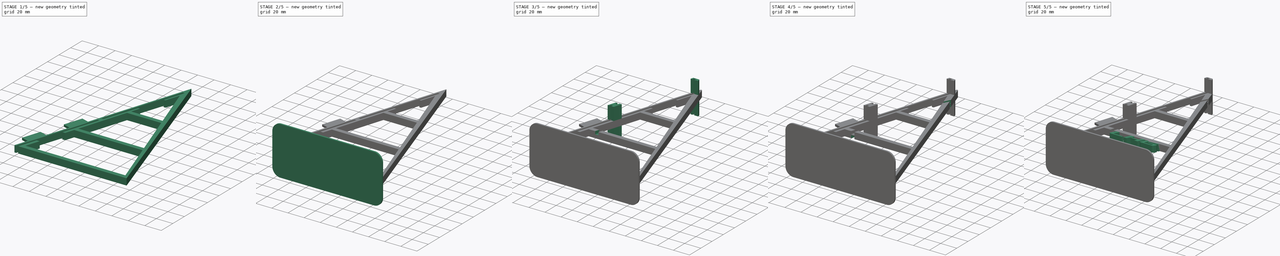
[diagram: build sequence overview — one tinted view per stage of 5, left to right]
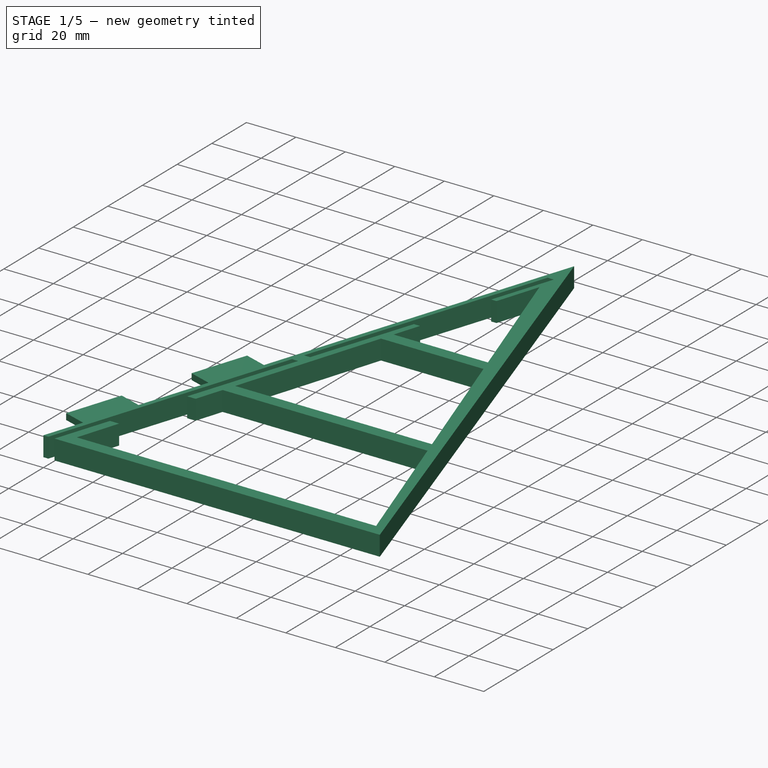
[diagram: stage 1 of 5 — iso view after this stage's code; geometry added in this stage tinted green]
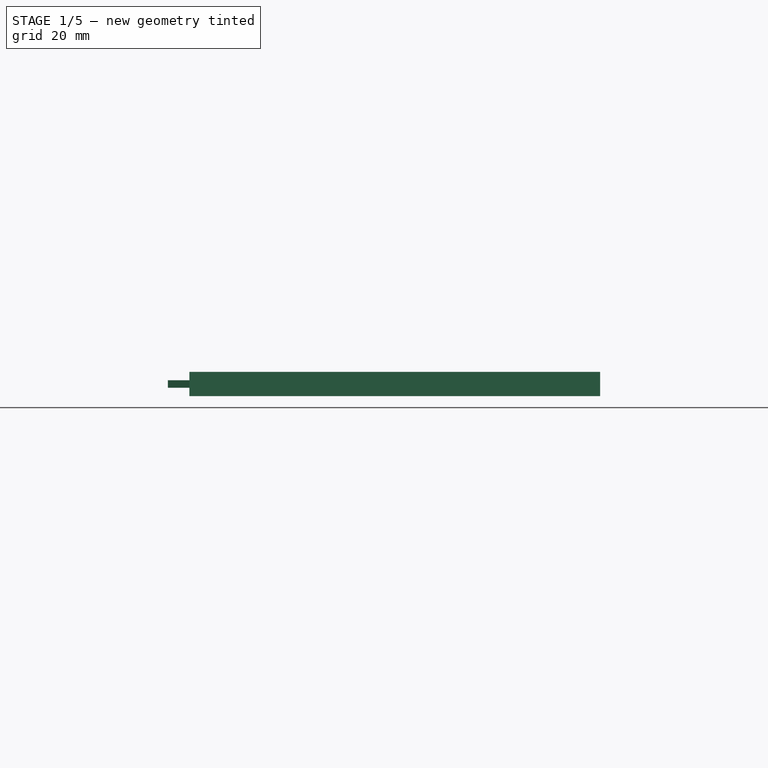
[diagram: stage 1 of 5 — front view after this stage's code; geometry added in this stage tinted green]
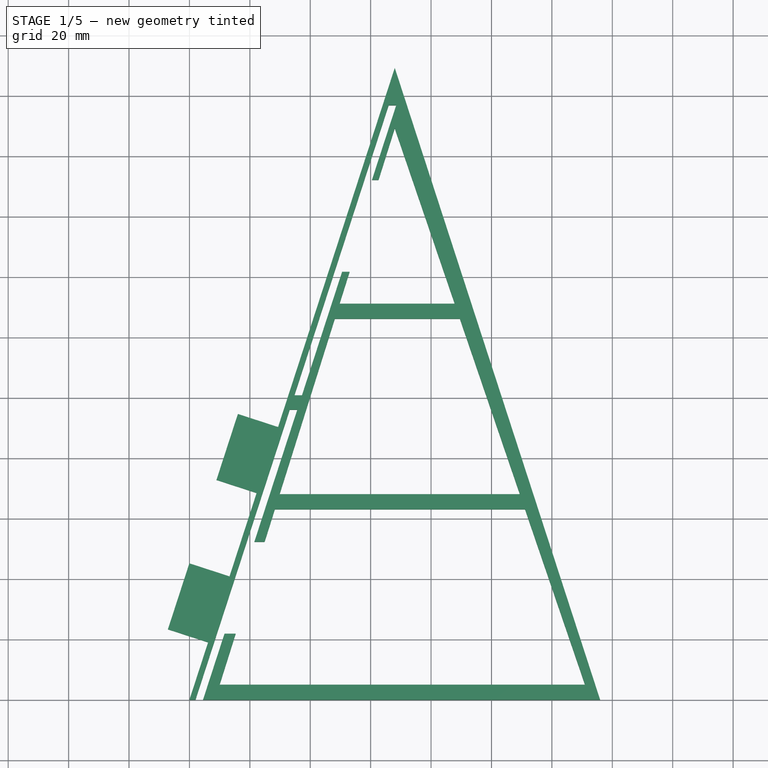
[diagram: stage 1 of 5 — top view after this stage's code; geometry added in this stage tinted green]
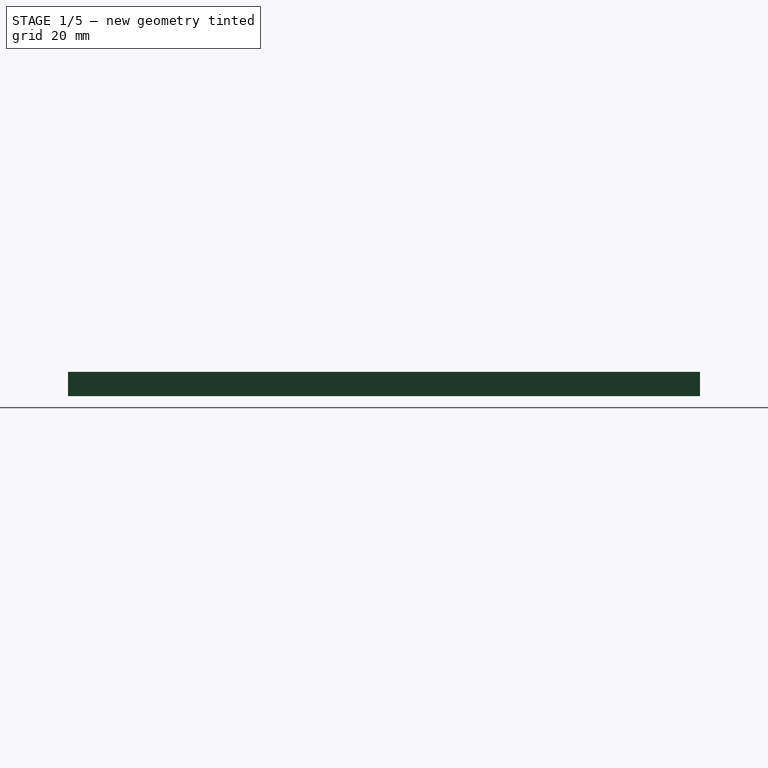
[diagram: stage 1 of 5 — right view after this stage's code; geometry added in this stage tinted green]
FCSTD DOCUMENT  (FreeCAD 0.20R29177 (Git))
Label: Halter von UI_Halterung_left_V2.2
License: All rights reserved
LicenseURL: http://en.wikipedia.org/wiki/All_rights_reserved
objects: Sketcher::SketchObject×10, PartDesign::Pocket×6, PartDesign::Pad×4, PartDesign::Fillet×4, Part::Part2DObjectPython×1, Part::Extrusion×1, PartDesign::Body×1
note: 41 computed .brp shape members not serialized (recipe doc carries the construction recipe); baked Part::Feature solids carry a one-line shape summary decoded from their .brp

FEATURE [Sketcher::SketchObject] Sketch  label="Grund Dreieck"
  FullyConstrained = true
  MapMode = 5
  Support = -> [XY_Plane]
  sketch-geometry (14):
    g0: LineSegment StartX=0 StartY=0 StartZ=0 EndX=67.9837 EndY=209.232 EndZ=0
    g1: LineSegment StartX=135.967 StartY=0 StartZ=0 EndX=0 EndY=0 EndZ=0
    g2: LineSegment StartX=67.9837 StartY=209.232 StartZ=0 EndX=135.967 EndY=0 EndZ=0
    g3: LineSegment StartX=67.9837 StartY=189.232 StartZ=0 EndX=49.7049 EndY=131.155 EndZ=0
    g4: LineSegment StartX=49.7049 StartY=131.155 StartZ=0 EndX=87.8387 EndY=131.155 EndZ=0
    g5: LineSegment StartX=87.8387 StartY=131.155 StartZ=0 EndX=67.9837 EndY=189.232 EndZ=0
    g6: LineSegment StartX=48.1313 StartY=126.155 StartZ=0 EndX=29.8525 EndY=68.0775 EndZ=0
    g7: LineSegment StartX=29.8525 StartY=68.0775 StartZ=0 EndX=109.403 EndY=68.0775 EndZ=0
    g8: LineSegment StartX=109.403 StartY=68.0775 StartZ=0 EndX=89.5481 EndY=126.155 EndZ=0
    g9: LineSegment StartX=89.5481 StartY=126.155 StartZ=0 EndX=48.1313 EndY=126.155 EndZ=0
    g10: LineSegment StartX=28.2788 StartY=63.0775 StartZ=0 EndX=10 EndY=5 EndZ=0
    g11: LineSegment StartX=10 StartY=5 StartZ=0 EndX=130.967 EndY=5 EndZ=0
    g12: LineSegment StartX=130.967 StartY=5 StartZ=0 EndX=111.112 EndY=63.0775 EndZ=0
    g13: LineSegment StartX=111.112 StartY=63.0775 StartZ=0 EndX=28.2788 EndY=63.0775 EndZ=0
  constraints (37):
    c: Coincident(g-1,g0)
    c: PointOnObject(g1,g-1)
    c: Coincident(g1,g0)
    c: Distance(g0) = 220
    c: Coincident(g2,g0)
    c: Coincident(g1,g2)
    c: Equal(g2,g0)
    c: Angle(g1,g0) = 1.25664
    c: Coincident(g3,g4)
    c: Horizontal(g4)
    c: Coincident(g4,g5)
    c: Coincident(g5,g3)
    c: Coincident(g6,g7)
    c: Horizontal(g7)
    c: Coincident(g7,g8)
    c: Coincident(g8,g9)
    c: Coincident(g9,g6)
    c: Horizontal(g9)
    c: Coincident(g10,g11)
    c: Horizontal(g11)
    c: Coincident(g11,g12)
    c: Coincident(g12,g13)
    c: Coincident(g13,g10)
    c: Horizontal(g13)
    c: DistanceY(g8,g4) = 5
    c: DistanceY(g12,g7) = 5
    c: DistanceY(g1,g11) = 5
    c: DistanceX(g0,g10) = 10
    c: DistanceX(g11,g1) = 5
    c: Tangent(g12,g8)
    c: Tangent(g8,g5)
    c: Tangent(g3,g6)
    c: Tangent(g6,g10)
    c: DistanceY(g3,g0) = 20
    c: Vertical(g3,g0)
    c: Equal(g3,g6)
    c: Equal(g6,g10)
FEATURE [PartDesign::Pad] Pad
  Direction = (0,0,1)
  Length = 8
  Length2 = 100
  Profile = -> Sketch
  Type = 0
FEATURE [Sketcher::SketchObject] Sketch003  label="HDT Halter"
  FullyConstrained = true
  MapMode = 5
  Placement = pos=(0,0,0) rot=(-0.456966,0.62896,0.62896;3.99886rad)
  sketch-geometry (8):
    g0: LineSegment StartX=-20 StartY=2.75 StartZ=0 EndX=-43 EndY=2.75 EndZ=0
    g1: LineSegment StartX=-43 StartY=2.75 StartZ=0 EndX=-43 EndY=5.25 EndZ=0
    g2: LineSegment StartX=-43 StartY=5.25 StartZ=0 EndX=-20 EndY=5.25 EndZ=0
    g3: LineSegment StartX=-20 StartY=5.25 StartZ=0 EndX=-20 EndY=2.75 EndZ=0
    g4: LineSegment StartX=-72 StartY=2.75 StartZ=0 EndX=-95 EndY=2.75 EndZ=0
    g5: LineSegment StartX=-95 StartY=2.75 StartZ=0 EndX=-95 EndY=5.25 EndZ=0
    g6: LineSegment StartX=-95 StartY=5.25 StartZ=0 EndX=-72 EndY=5.25 EndZ=0
    g7: LineSegment StartX=-72 StartY=5.25 StartZ=0 EndX=-72 EndY=2.75 EndZ=0
  constraints (24):
    c: Coincident(g0,g1)
    c: Coincident(g1,g2)
    c: Coincident(g2,g3)
    c: Coincident(g3,g0)
    c: Horizontal(g2)
    c: Vertical(g1)
    c: Vertical(g3)
    c: DistanceX(g2,g2) = 23
    c: DistanceX(g0,g-1) = 20
    c: DistanceY(g1,g1) = 2.5
    c: Coincident(g4,g5)
    c: Coincident(g5,g6)
    c: Coincident(g6,g7)
    c: Coincident(g7,g4)
    c: Horizontal(g4)
    c: Horizontal(g6)
    c: Vertical(g5)
    c: Vertical(g7)
    c: Equal(g2,g6)
    c: Equal(g1,g7)
    c: DistanceX(g4,g0) = 52
    c: Horizontal(g0,g4)
    c: DistanceY(g-1,g2) = 5.25
    c: Horizontal(g0)
FEATURE [PartDesign::Pad] Pad001
  BaseFeature = -> Pad
  Direction = (-0.951057,0.309017,-1e-16)
  Length = 14
  Length2 = 10
  Profile = -> Sketch003
  ReferenceAxis = -> Sketch003 [N_Axis]
  Type = 0
FEATURE [Sketcher::SketchObject] Sketch005  label="IDT Aussparung"
  FullyConstrained = true
  MapMode = 5
  Placement = pos=(0,0,8) rot=(0,0,1;0rad)
  sketch-geometry (16):
    g0: LineSegment StartX=33.2107 StartY=96.0567 StartZ=0 EndX=2 EndY=0 EndZ=0
    g1: LineSegment StartX=2 StartY=0 StartZ=0 EndX=4.5 EndY=0 EndZ=0
    g2: LineSegment StartX=4.5 StartY=0 StartZ=0 EndX=11.6074 EndY=21.8743 EndZ=0
    g3: LineSegment StartX=11.6074 StartY=21.8743 StartZ=0 EndX=16.6074 EndY=21.8743 EndZ=0
    g4: LineSegment StartX=16.6074 StartY=21.8743 StartZ=0 EndX=26.4959 EndY=52.3081 EndZ=0
    g5: LineSegment StartX=26.4959 StartY=52.3081 StartZ=0 EndX=21.4959 EndY=52.3081 EndZ=0
    g6: LineSegment StartX=21.4959 StartY=52.3081 StartZ=0 EndX=35.7107 EndY=96.0567 EndZ=0
    g7: LineSegment StartX=35.7107 StartY=96.0567 StartZ=0 EndX=33.2107 EndY=96.0567 EndZ=0
    g8: LineSegment StartX=34.7558 StartY=100.812 StartZ=0 EndX=65.9665 EndY=196.869 EndZ=0
    g9: LineSegment StartX=65.9665 StartY=196.869 StartZ=0 EndX=68.4665 EndY=196.869 EndZ=0
    g10: LineSegment StartX=68.4665 StartY=196.869 StartZ=0 EndX=60.4321 EndY=172.141 EndZ=0
    g11: LineSegment StartX=60.4321 StartY=172.141 StartZ=0 EndX=65.4321 EndY=172.141 EndZ=0
    g12: LineSegment StartX=65.4321 StartY=172.141 StartZ=0 EndX=55.5435 EndY=141.707 EndZ=0
    g13: LineSegment StartX=55.5435 StartY=141.707 StartZ=0 EndX=50.5435 EndY=141.707 EndZ=0
    g14: LineSegment StartX=50.5435 StartY=141.707 StartZ=0 EndX=37.2558 EndY=100.812 EndZ=0
    g15: LineSegment StartX=37.2558 StartY=100.812 StartZ=0 EndX=34.7558 EndY=100.812 EndZ=0
  constraints (46):
    c: Coincident(g0,g1)
    c: Coincident(g1,g2)
    c: Coincident(g2,g3)
    c: Coincident(g3,g4)
    c: Coincident(g4,g5)
    c: Coincident(g5,g6)
    c: Coincident(g6,g7)
    c: Coincident(g7,g0)
    c: Horizontal(g7)
    c: Horizontal(g1)
    c: Parallel(g0,g6)
    c: Angle(g0,g-2) = 0.314159
    c: Horizontal(g5)
    c: Horizontal(g3)
    c: DistanceX(g1,g1) = 2.5
    c: Horizontal(g0,g-1)
    c: Parallel(g2,g0)
    c: Distance(g1,g6) = 101
    c: DistanceX(g-1,g0) = 2
    c: Distance(g2) = 23
    c: DistanceX(g3,g3) = 5
    c: Equal(g5,g3)
    c: Equal(g7,g1)
    c: Distance(g5,g2) = 32
    c: Coincident(g8,g9)
    c: Horizontal(g9)
    c: Coincident(g9,g10)
    c: Coincident(g10,g11)
    c: Horizontal(g11)
    c: Coincident(g11,g12)
    c: Coincident(g12,g13)
    c: Horizontal(g13)
    c: Coincident(g13,g14)
    c: Coincident(g14,g15)
    c: Coincident(g15,g8)
    c: Horizontal(g15)
    c: Equal(g15,g7)
    c: Tangent(g8,g0)
    c: Equal(g8,g0)
    c: Equal(g13,g11)
    c: Equal(g11,g5)
    c: Tangent(g10,g14)
    c: Parallel(g14,g8)
    c: Equal(g4,g12)
    c: Distance(g6,g14) = 5
    c: Distance(g14) = 43
FEATURE [PartDesign::Pocket] Pocket
  BaseFeature = -> Pad001
  Direction = (0,0,-1)
  Length = 8
  Length2 = 5
  Profile = -> Sketch005
  ReferenceAxis = -> Sketch005 [N_Axis]
  Type = 0
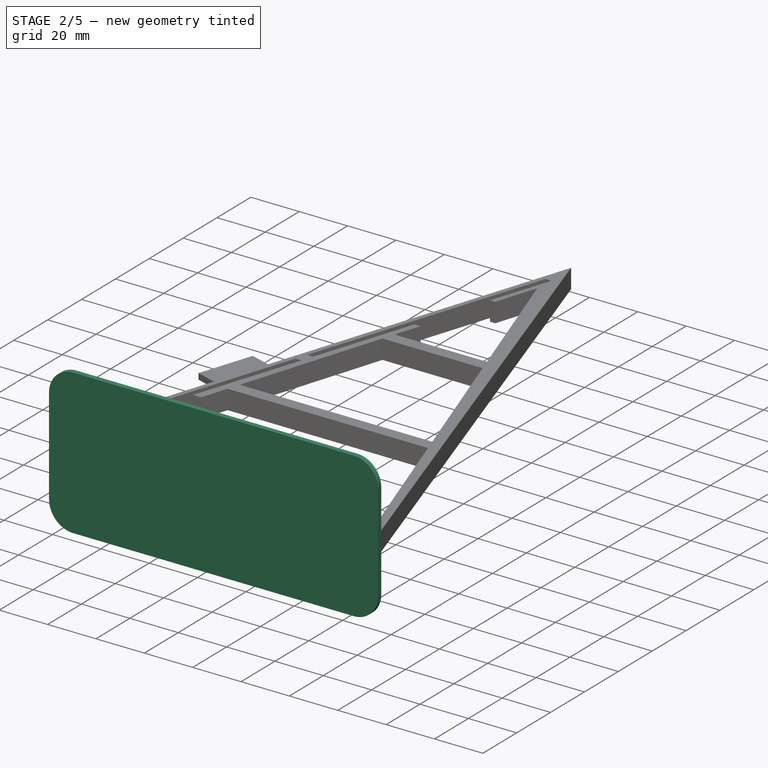
[diagram: stage 2 of 5 — iso view after this stage's code; geometry added in this stage tinted green]
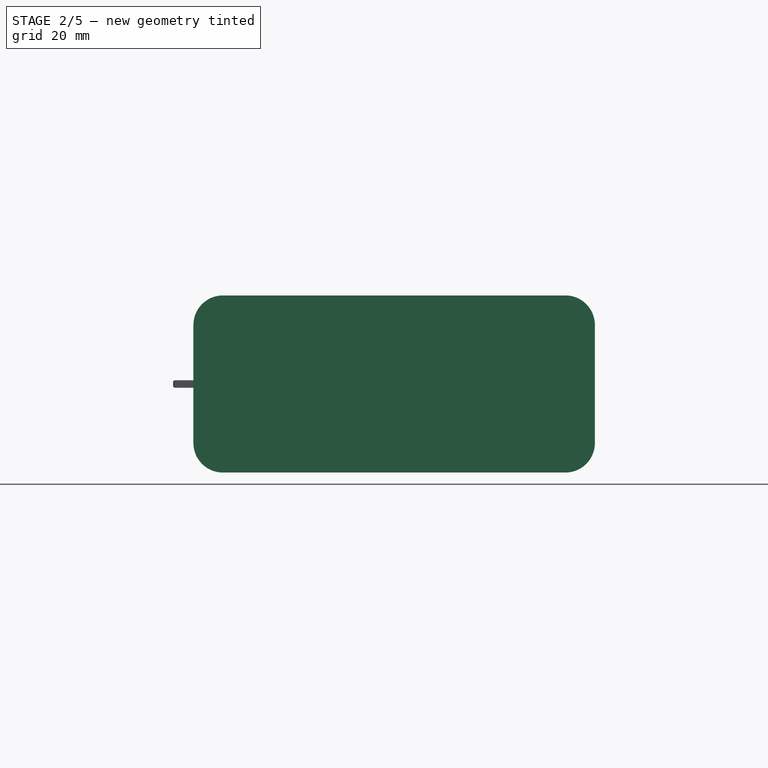
[diagram: stage 2 of 5 — front view after this stage's code; geometry added in this stage tinted green]
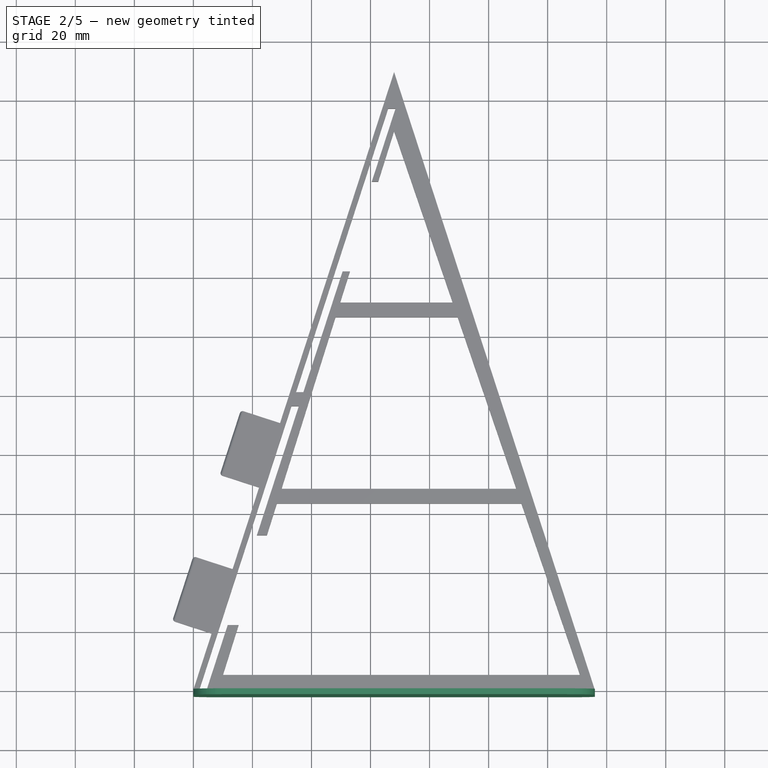
[diagram: stage 2 of 5 — top view after this stage's code; geometry added in this stage tinted green]
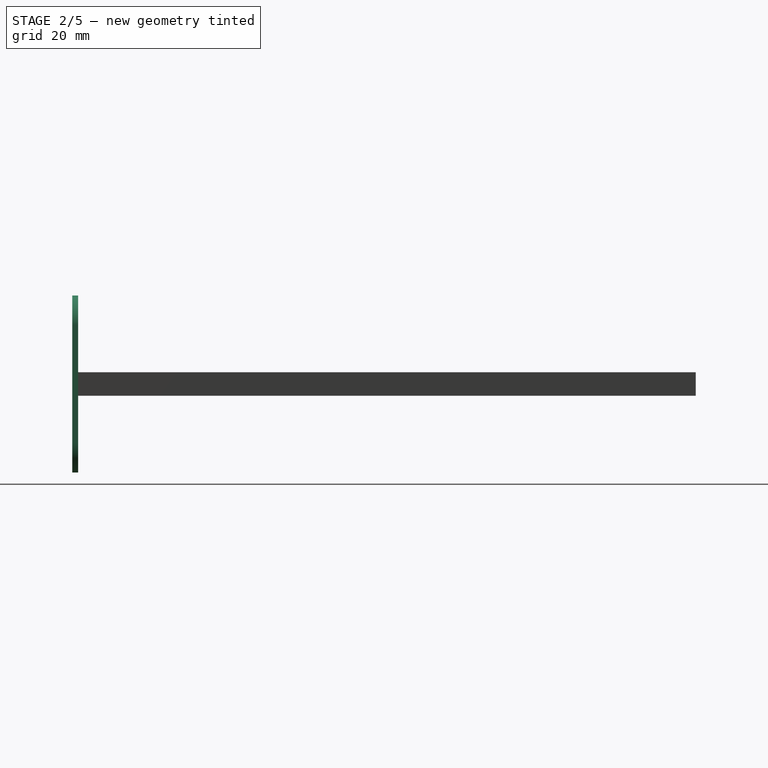
[diagram: stage 2 of 5 — right view after this stage's code; geometry added in this stage tinted green]
FEATURE [Sketcher::SketchObject] Sketch006
  FullyConstrained = true
  MapMode = 5
  Placement = pos=(0,0,0) rot=(1,0,0;1.5708rad)
  Support = -> [Pocket]
  sketch-geometry (4):
    g0: LineSegment StartX=0 StartY=34 StartZ=0 EndX=136 EndY=34 EndZ=0
    g1: LineSegment StartX=136 StartY=34 StartZ=0 EndX=136 EndY=-26 EndZ=0
    g2: LineSegment StartX=136 StartY=-26 StartZ=0 EndX=0 EndY=-26 EndZ=0
    g3: LineSegment StartX=0 StartY=-26 StartZ=0 EndX=0 EndY=34 EndZ=0
  constraints (12):
    c: Coincident(g0,g1)
    c: Coincident(g1,g2)
    c: Coincident(g2,g3)
    c: Coincident(g3,g0)
    c: Horizontal(g0)
    c: Horizontal(g2)
    c: Vertical(g1)
    c: Vertical(g3)
    c: PointOnObject(g0,g-2)
    c: DistanceX(g0,g0) = 136
    c: DistanceY(g1,g1) = 60
    c: DistanceY(g2,g-1) = 26
FEATURE [PartDesign::Pad] Pad002
  BaseFeature = -> Pocket
  Direction = (0,-1,2e-16)
  Length = 2
  Length2 = 10
  Profile = -> Sketch006
  ReferenceAxis = -> Sketch006 [N_Axis]
  Type = 0
FEATURE [PartDesign::Fillet] Fillet
  Base = -> Pad002 [Edge1,Edge5,Edge10,Edge2]
  BaseFeature = -> Pad002
  Radius = 10
  SupportTransform = false
  UseAllEdges = false
FEATURE [PartDesign::Fillet] Fillet001
  Base = -> Fillet [Face49,Face50]
  BaseFeature = -> Fillet
  Radius = 1
  SupportTransform = false
  UseAllEdges = false
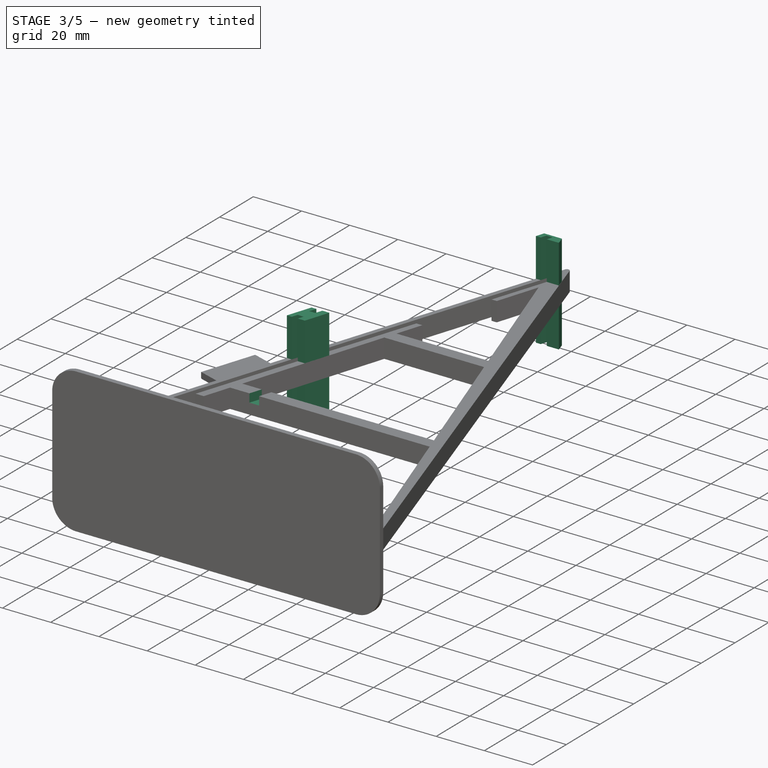
[diagram: stage 3 of 5 — iso view after this stage's code; geometry added in this stage tinted green]
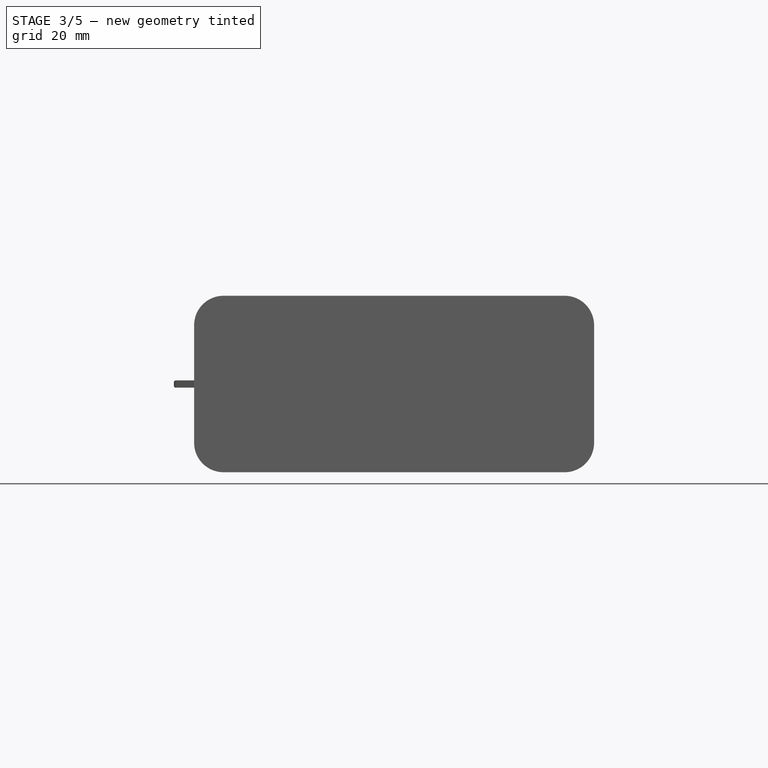
[diagram: stage 3 of 5 — front view after this stage's code; geometry added in this stage tinted green]
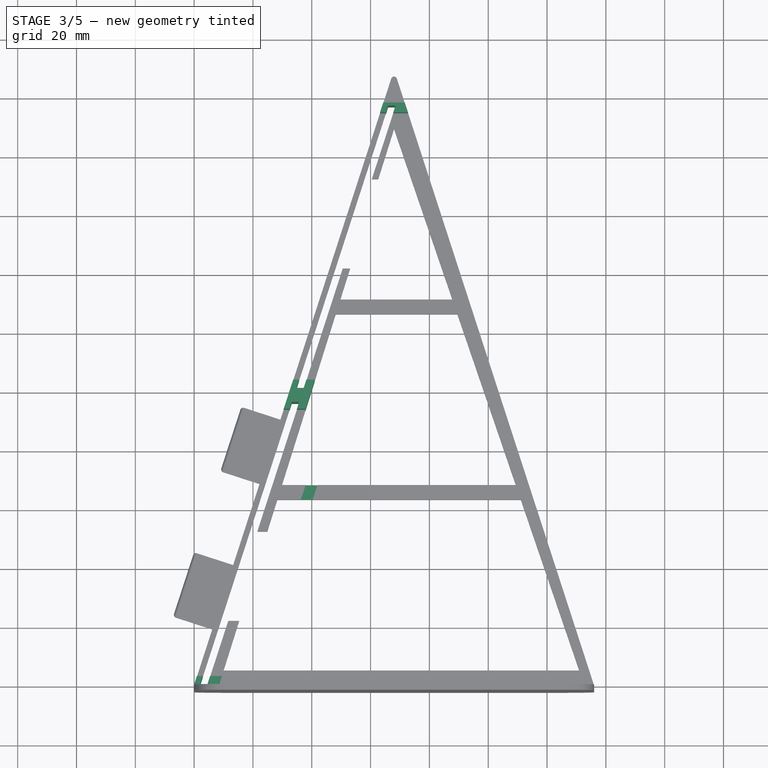
[diagram: stage 3 of 5 — top view after this stage's code; geometry added in this stage tinted green]
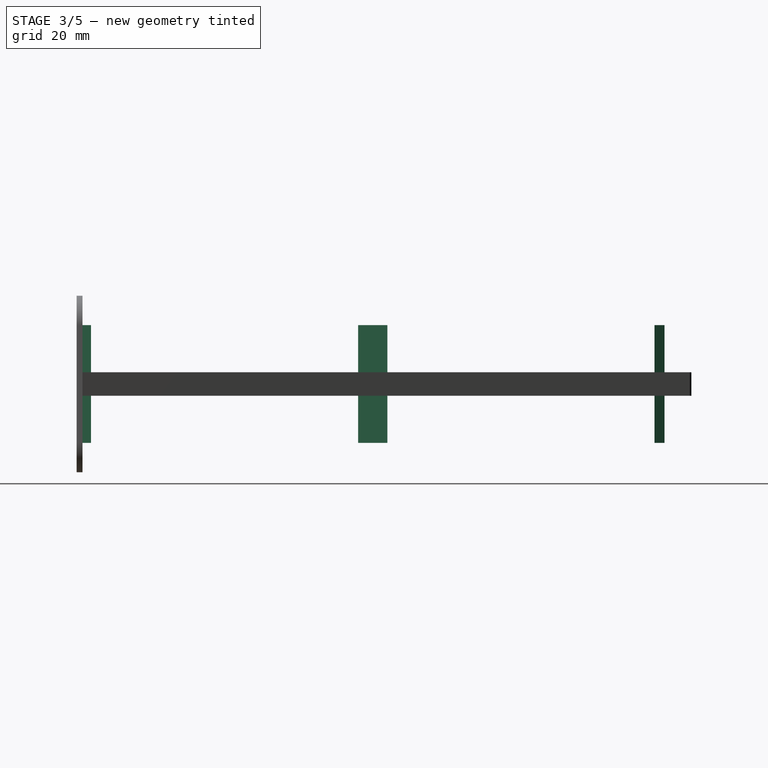
[diagram: stage 3 of 5 — right view after this stage's code; geometry added in this stage tinted green]
FEATURE [PartDesign::Fillet] Fillet002
  Base = -> Fillet001 [Edge14]
  BaseFeature = -> Fillet001
  Radius = 1
  SupportTransform = false
  UseAllEdges = false
FEATURE [Sketcher::SketchObject] Sketch007
  AttachmentOffset = pos=(0,0,-24) rot=(0,0,1;0rad)
  FullyConstrained = true
  MapMode = 5
  Placement = pos=(0,0,-16) rot=(0,0,1;0rad)
  Support = -> [Fillet002]
  sketch-geometry (30):
    g0: LineSegment StartX=0 StartY=0 StartZ=0 EndX=0.927051 EndY=2.85317 EndZ=0
    g1: LineSegment StartX=0.927051 StartY=2.85317 StartZ=0 EndX=2.92705 EndY=2.85317 EndZ=0
    g2: LineSegment StartX=2.92705 StartY=2.85317 StartZ=0 EndX=2 EndY=0 EndZ=0
    g3: LineSegment StartX=2 StartY=0 StartZ=0 EndX=4.5 EndY=0 EndZ=0
    g4: LineSegment StartX=4.5 StartY=0 StartZ=0 EndX=5.42705 EndY=2.85317 EndZ=0
    g5: LineSegment StartX=5.42705 StartY=2.85317 StartZ=0 EndX=9.30498 EndY=2.85317 EndZ=0
    g6: LineSegment StartX=9.30498 StartY=2.85317 StartZ=0 EndX=8.40702 EndY=0 EndZ=0
    g7: LineSegment StartX=0 StartY=0 StartZ=0 EndX=0 EndY=-1 EndZ=0
    g8: LineSegment StartX=0 StartY=-1 StartZ=0 EndX=8.40702 EndY=-1 EndZ=0
    g9: LineSegment StartX=8.40702 StartY=-1 StartZ=0 EndX=8.40702 EndY=0 EndZ=0
    g10: LineSegment StartX=30.4382 StartY=93.6791 StartZ=0 EndX=33.6829 EndY=103.665 EndZ=0
    g11: LineSegment StartX=33.6829 StartY=103.665 StartZ=0 EndX=35.6829 EndY=103.665 EndZ=0
    g12: LineSegment StartX=35.6829 StartY=103.665 StartZ=0 EndX=34.7558 EndY=100.812 EndZ=0
    g13: LineSegment StartX=34.7558 StartY=100.812 StartZ=0 EndX=37.2558 EndY=100.812 EndZ=0
    g14: LineSegment StartX=37.2558 StartY=100.812 StartZ=0 EndX=38.1829 EndY=103.665 EndZ=0
    g15: LineSegment StartX=38.1829 StartY=103.665 StartZ=0 EndX=41.0329 EndY=103.665 EndZ=0
    g16: LineSegment StartX=41.0329 StartY=103.665 StartZ=0 EndX=37.89 EndY=93.6791 EndZ=0
    g17: LineSegment StartX=37.89 StartY=93.6791 StartZ=0 EndX=34.9382 EndY=93.6791 EndZ=0
    g18: LineSegment StartX=34.9382 StartY=93.6791 StartZ=0 EndX=35.7107 EndY=96.0567 EndZ=0
    g19: LineSegment StartX=35.7107 StartY=96.0567 StartZ=0 EndX=33.2107 EndY=96.0567 EndZ=0
    g20: LineSegment StartX=33.2107 StartY=96.0567 StartZ=0 EndX=32.4382 EndY=93.6791 EndZ=0
    g21: LineSegment StartX=32.4382 StartY=93.6791 StartZ=0 EndX=30.4382 EndY=93.6791 EndZ=0
    g22: LineSegment StartX=63.194 StartY=194.491 StartZ=0 EndX=65.194 EndY=194.491 EndZ=0
    g23: LineSegment StartX=65.194 StartY=194.491 StartZ=0 EndX=65.9665 EndY=196.869 EndZ=0
    g24: LineSegment StartX=65.9665 StartY=196.869 StartZ=0 EndX=68.4665 EndY=196.869 EndZ=0
    g25: LineSegment StartX=68.4665 StartY=196.869 StartZ=0 EndX=67.694 EndY=194.491 EndZ=0
    g26: LineSegment StartX=67.694 StartY=194.491 StartZ=0 EndX=72.7389 EndY=194.491 EndZ=0
    g27: LineSegment StartX=72.7389 StartY=194.491 StartZ=0 EndX=71.6414 EndY=197.869 EndZ=0
    g28: LineSegment StartX=71.6414 StartY=197.869 StartZ=0 EndX=64.2914 EndY=197.869 EndZ=0
    g29: LineSegment StartX=64.2914 StartY=197.869 StartZ=0 EndX=63.194 EndY=194.491 EndZ=0
  constraints (83):
    c: Coincident(g-1,g0)
    c: Coincident(g0,g1)
    c: Horizontal(g1)
    c: Coincident(g1,g2)
    c: PointOnObject(g2,g-1)
    c: Coincident(g2,g3)
    c: PointOnObject(g3,g-1)
    c: Coincident(g3,g4)
    c: Coincident(g4,g5)
    c: Horizontal(g5)
    c: Coincident(g5,g6)
    c: PointOnObject(g6,g-1)
    c: Coincident(g0,g7)
    c: PointOnObject(g7,g-2)
    c: Coincident(g7,g8)
    c: Horizontal(g8)
    c: Coincident(g8,g9)
    c: Coincident(g9,g6)
    c: Vertical(g9)
    c: DistanceY(g7,g7) = 1
    c: Distance(g0) = 3
    c: Equal(g2,g0)
    c: Angle(g3,g2) = 1.25664
    c: DistanceX(g1,g1) = 2
    c: Parallel(g4,g2)
    c: DistanceX(g1,g4) = 2.5
    c: Equal(g4,g2)
    c: Coincident(g10,g11)
    c: Horizontal(g11)
    c: Coincident(g11,g12)
    c: Coincident(g12,g13)
    c: Horizontal(g13)
    c: Coincident(g13,g14)
    c: Coincident(g14,g15)
    c: Horizontal(g15)
    c: Coincident(g15,g16)
    c: Coincident(g16,g17)
    c: Coincident(g17,g18)
    c: Coincident(g18,g19)
    c: Horizontal(g19)
    c: Coincident(g19,g20)
    c: Coincident(g20,g21)
    c: Coincident(g21,g10)
    c: Horizontal(g21)
    c: Horizontal(g17)
    c: Equal(g1,g21)
    c: Equal(g19,g13)
    c: Equal(g11,g21)
    c: Horizontal(g20,g17)
    c: Horizontal(g14,g11)
    c: Parallel(g12,g10)
    c: Parallel(g12,g14)
    c: Distance(g12) = 3
    c: Distance(g18,g13) = 5
    c: Distance(g3,g18) = 101
    c: Tangent(g0,g10)
    c: Horizontal(g22)
    c: Coincident(g22,g23)
    c: Coincident(g23,g24)
    c: Horizontal(g24)
    c: Coincident(g24,g25)
    c: Coincident(g25,g26)
    c: Coincident(g26,g27)
    c: Coincident(g27,g28)
    c: Horizontal(g28)
    c: Coincident(g28,g29)
    c: Coincident(g29,g22)
    c: Tangent(g10,g29)
    c: Tangent(g16,g6)
    c: Tangent(g4,g18)
    c: Parallel(g20,g18)
    c: Angle(g6,g-1) = 1.87571
    c: DistanceX(g15,g15) = 2.85
    c: Tangent(g25,g14)
    c: Tangent(g23,g12)
    c: Equal(g23,g20)
    c: Equal(g25,g23)
    c: Horizontal(g26)
    c: Distance(g13,g24) = 101
    c: DistanceY(g23,g28) = 1
    c: Distance(g20,g2) = 98.5
    c: Angle(g-2,g27) = 0.314159
    c: DistanceX(g28,g28) = 7.35
FEATURE [PartDesign::Pad] Pad003
  BaseFeature = -> Fillet002
  Direction = (0,0,1)
  Length = 40
  Length2 = 10
  Profile = -> Sketch007
  ReferenceAxis = -> Sketch007 [N_Axis]
  Type = 0
FEATURE [Sketcher::SketchObject] Sketch008
  FullyConstrained = true
  MapMode = 5
  Placement = pos=(0,0,8) rot=(0,0,1;0rad)
  Support = -> [Pad003]
  sketch-geometry (4):
    g0: LineSegment StartX=37.9371 StartY=68.1 StartZ=0 EndX=36.28 EndY=63 EndZ=0
    g1: LineSegment StartX=36.28 StartY=63 StartZ=0 EndX=40.28 EndY=63 EndZ=0
    g2: LineSegment StartX=40.28 StartY=63 StartZ=0 EndX=41.9371 EndY=68.1 EndZ=0
    g3: LineSegment StartX=41.9371 StartY=68.1 StartZ=0 EndX=37.9371 EndY=68.1 EndZ=0
  constraints (12):
    c: Coincident(g0,g1)
    c: Horizontal(g1)
    c: Coincident(g1,g2)
    c: Coincident(g2,g3)
    c: Coincident(g3,g0)
    c: Horizontal(g3)
    c: DistanceX(g1,g1) = 4
    c: Angle(g0,g-2) = 0.314159
    c: DistanceY(g0,g0) = 5.1
    c: Equal(g3,g1)
    c: DistanceX(g-1,g0) = 36.28
    c: DistanceY(g-1,g0) = 63
FEATURE [PartDesign::Pocket] Pocket001
  BaseFeature = -> Pad003
  Direction = (0,0,-1)
  Length = 3.5
  Length2 = 5
  Profile = -> Sketch008
  ReferenceAxis = -> Sketch008 [N_Axis]
  Type = 0
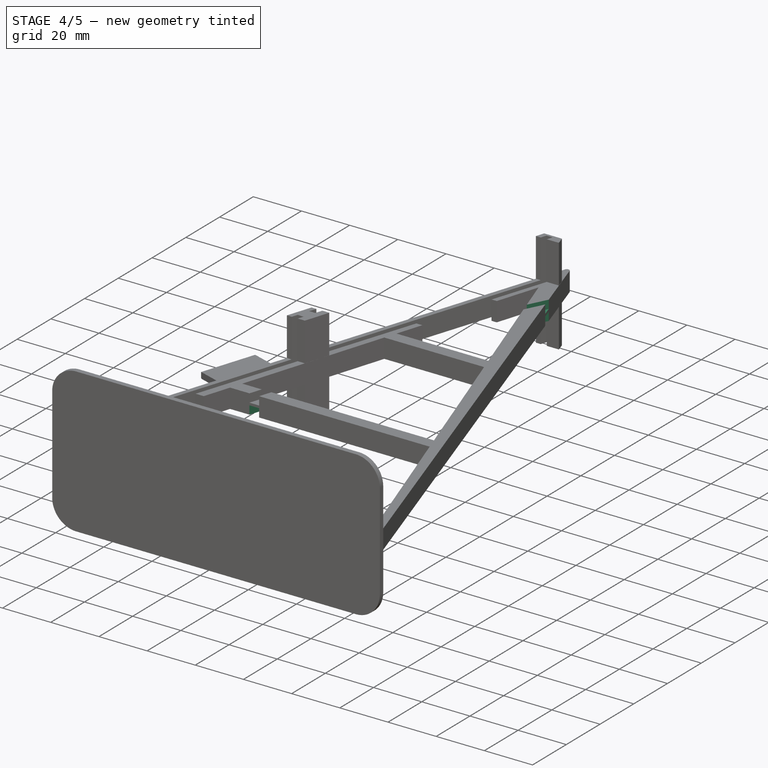
[diagram: stage 4 of 5 — iso view after this stage's code; geometry added in this stage tinted green]
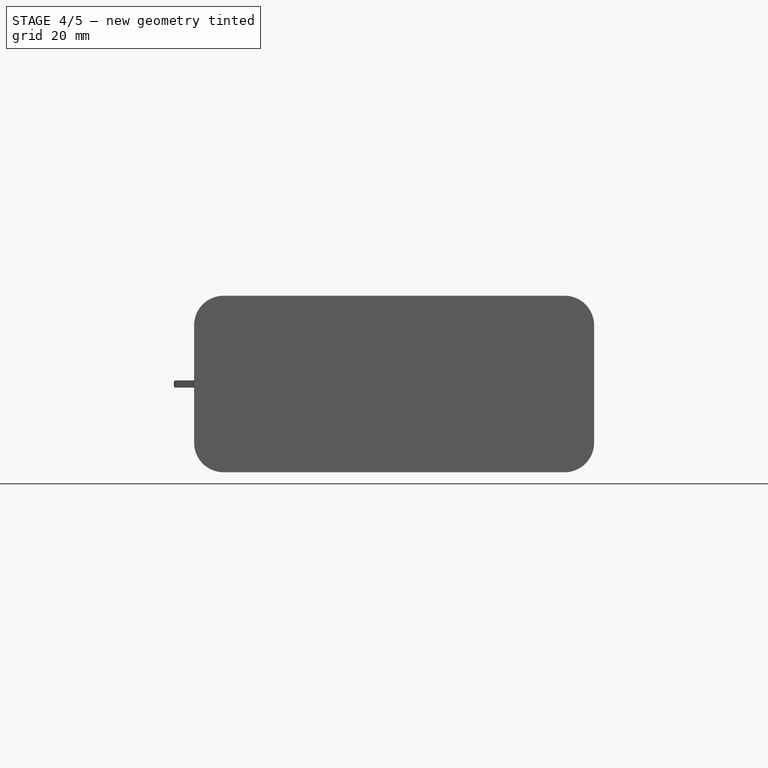
[diagram: stage 4 of 5 — front view after this stage's code; geometry added in this stage tinted green]
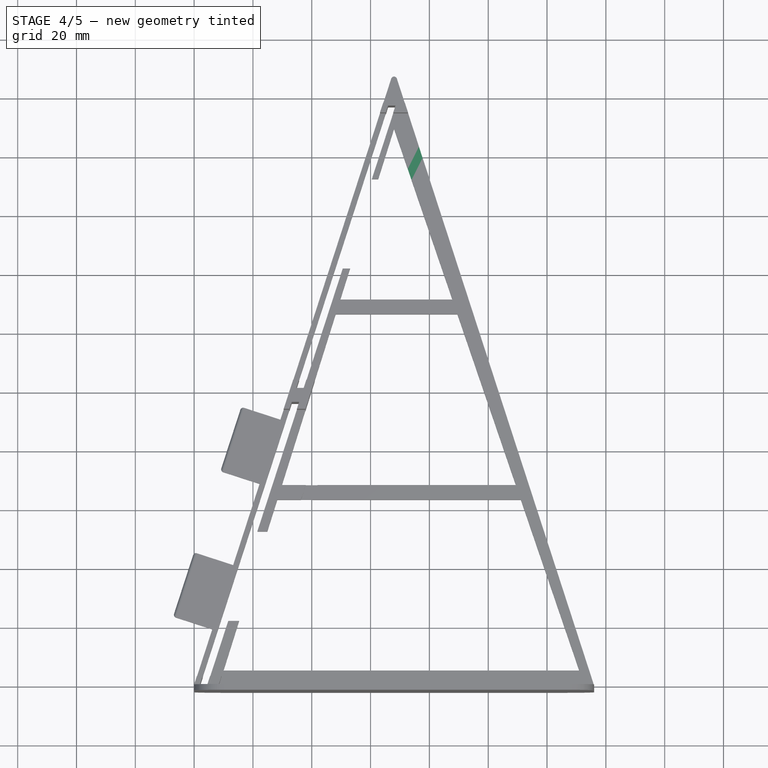
[diagram: stage 4 of 5 — top view after this stage's code; geometry added in this stage tinted green]
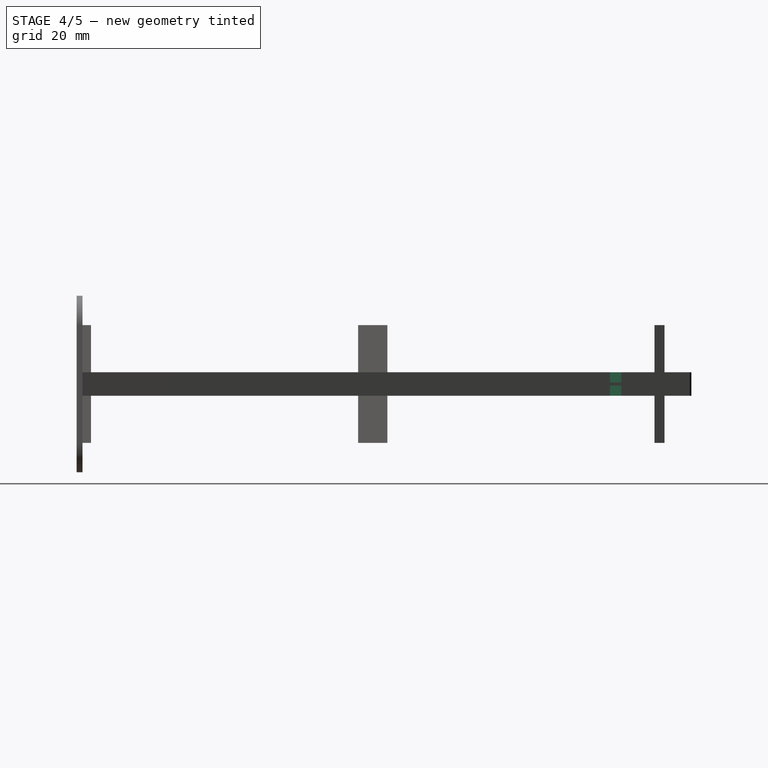
[diagram: stage 4 of 5 — right view after this stage's code; geometry added in this stage tinted green]
FEATURE [Sketcher::SketchObject] Sketch009
  FullyConstrained = true
  MapMode = 5
  Placement = pos=(0,0,0) rot=(1,0,0;3.14159rad)
  Support = -> [Pocket001]
  sketch-geometry (4):
    g0: LineSegment StartX=36.28 StartY=-63 StartZ=0 EndX=37.9371 EndY=-68.1 EndZ=0
    g1: LineSegment StartX=37.9371 StartY=-68.1 StartZ=0 EndX=41.9371 EndY=-68.1 EndZ=0
    g2: LineSegment StartX=41.9371 StartY=-68.1 StartZ=0 EndX=40.28 EndY=-63 EndZ=0
    g3: LineSegment StartX=40.28 StartY=-63 StartZ=0 EndX=36.28 EndY=-63 EndZ=0
  constraints (12):
    c: Coincident(g0,g1)
    c: Horizontal(g1)
    c: Coincident(g1,g2)
    c: Coincident(g2,g3)
    c: Coincident(g3,g0)
    c: Horizontal(g3)
    c: Equal(g1,g3)
    c: DistanceX(g-1,g0) = 36.28
    c: DistanceX(g3,g3) = 4
    c: DistanceY(g0,g-1) = 63
    c: DistanceY(g0,g0) = 5.1
    c: Angle(g-2,g0) = 0.314159
FEATURE [PartDesign::Pocket] Pocket002
  BaseFeature = -> Pocket001
  Direction = (0,0,1)
  Length = 3.5
  Length2 = 5
  Profile = -> Sketch009
  ReferenceAxis = -> Sketch009 [N_Axis]
  Type = 0
FEATURE [Sketcher::SketchObject] Sketch010
  FullyConstrained = true
  MapMode = 5
  Placement = pos=(0,0,8) rot=(0,0,1;0rad)
  Support = -> [Pocket002]
  sketch-geometry (4):
    g0: LineSegment StartX=72.2374 StartY=174.796 StartZ=0 EndX=76.6374 EndY=183.582 EndZ=0
    g1: LineSegment StartX=76.6374 StartY=183.582 StartZ=0 EndX=77.9 EndY=179.787 EndZ=0
    g2: LineSegment StartX=77.9 StartY=179.787 StartZ=0 EndX=73.5 EndY=171 EndZ=0
    g3: LineSegment StartX=73.5 StartY=171 StartZ=0 EndX=72.2374 EndY=174.796 EndZ=0
  constraints (12):
    c: Coincident(g0,g1)
    c: Coincident(g1,g2)
    c: Coincident(g2,g3)
    c: Coincident(g3,g0)
    c: Equal(g0,g2)
    c: Parallel(g2,g0)
    c: DistanceY(g-1,g2) = 171
    c: Angle(g-2,g3) = 0.321141
    c: Angle(g2,g3) = 0.785398
    c: Distance(g3) = 4
    c: DistanceX(g-1,g2) = 73.5
    c: DistanceX(g2,g1) = 4.4
FEATURE [PartDesign::Pocket] Pocket003
  BaseFeature = -> Pocket002
  Direction = (0,0,-1)
  Length = 3.5
  Length2 = 5
  Profile = -> Sketch010
  ReferenceAxis = -> Sketch010 [N_Axis]
  Type = 0
FEATURE [Sketcher::SketchObject] Sketch011
  FullyConstrained = true
  MapMode = 5
  Placement = pos=(0,0,0) rot=(1,0,0;3.14159rad)
  Support = -> [Pocket003]
  sketch-geometry (4):
    g0: LineSegment StartX=76.6374 StartY=-183.582 StartZ=0 EndX=77.9 EndY=-179.787 EndZ=0
    g1: LineSegment StartX=77.9 StartY=-179.787 StartZ=0 EndX=73.5 EndY=-171 EndZ=0
    g2: LineSegment StartX=73.5 StartY=-171 StartZ=0 EndX=72.2374 EndY=-174.796 EndZ=0
    g3: LineSegment StartX=72.2374 StartY=-174.796 StartZ=0 EndX=76.6374 EndY=-183.582 EndZ=0
  constraints (12):
    c: Coincident(g0,g1)
    c: Coincident(g1,g2)
    c: Coincident(g2,g3)
    c: Coincident(g3,g0)
    c: Angle(g2,g1) = 0.785398
    c: DistanceY(g1,g-1) = 171
    c: DistanceX(g-1,g1) = 73.5
    c: Parallel(g1,g3)
    c: Angle(g2,g-2) = 0.321141
    c: Distance(g2) = 4
    c: DistanceX(g1,g0) = 4.4
    c: Parallel(g2,g0)
FEATURE [PartDesign::Pocket] Pocket004
  BaseFeature = -> Pocket003
  Direction = (0,0,1)
  Length = 3.5
  Length2 = 5
  Profile = -> Sketch011
  ReferenceAxis = -> Sketch011 [N_Axis]
  Type = 0
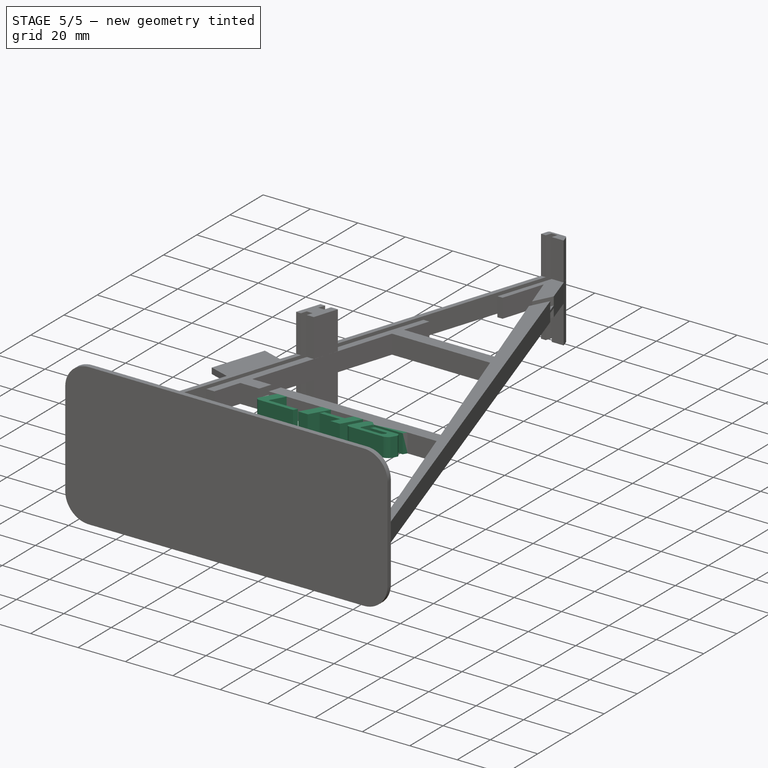
[diagram: stage 5 of 5 — iso view after this stage's code; geometry added in this stage tinted green]
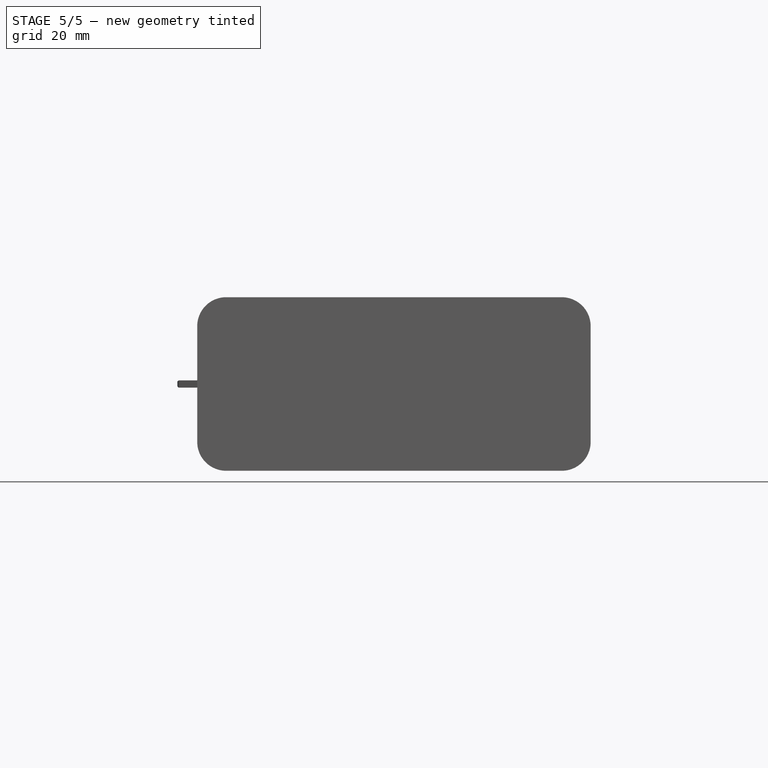
[diagram: stage 5 of 5 — front view after this stage's code; geometry added in this stage tinted green]
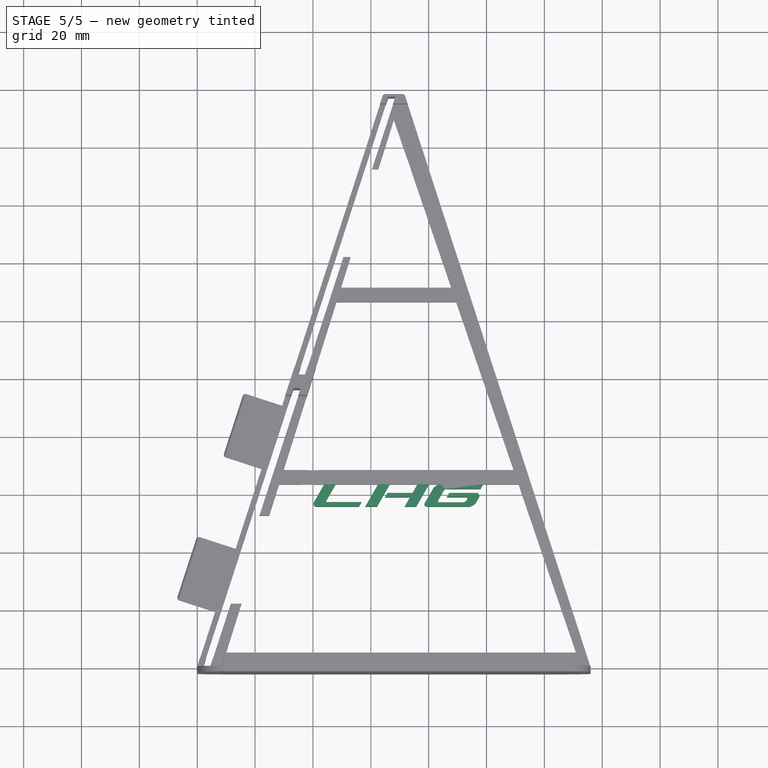
[diagram: stage 5 of 5 — top view after this stage's code; geometry added in this stage tinted green]
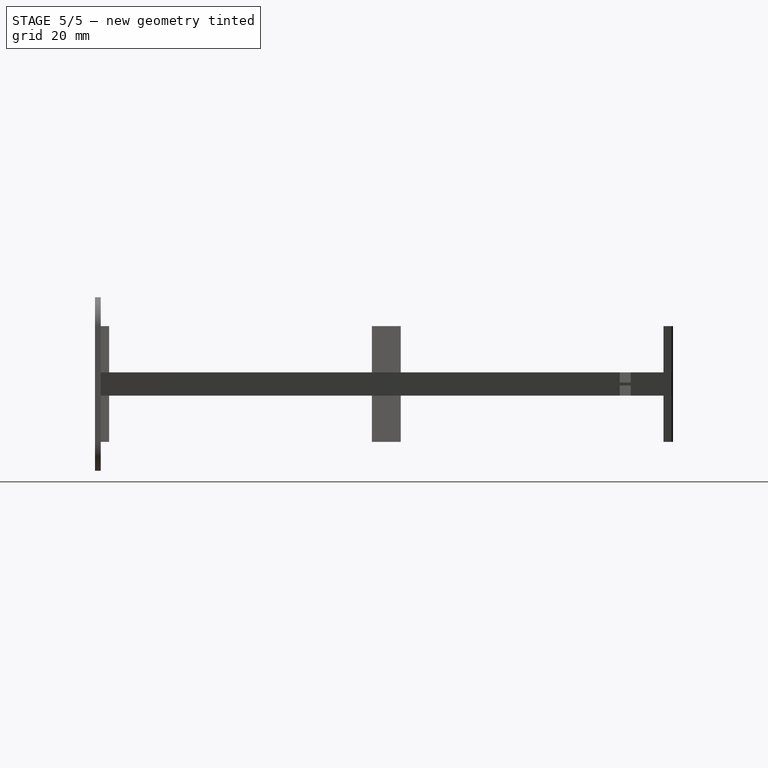
[diagram: stage 5 of 5 — right view after this stage's code; geometry added in this stage tinted green]
FEATURE [Part::Part2DObjectPython] ShapeString  # Draft 2D object (typed FeaturePython)
  FontFile = <userpath>/Desktop/CAD/Schriftarten/__outridersuperital.ttf
  MakeFace = true
  Placement = pos=(31.33,42.7,0) rot=(0,0,1;0rad)
  Size = 5
  String = LHG
  Tracking = 0
FEATURE [Part::Extrusion] Extrude
  Base = -> ShapeString
  Dir = (0,0,1)
  DirMode = 2
  FaceMakerClass = Part::FaceMakerBullseye
  LengthFwd = 8
  LengthRev = 0
  Placement = pos=(7,12.75,0) rot=(0,0,1;0rad)
  Solid = false
  Symmetric = false
FEATURE [Sketcher::SketchObject] Sketch012
  FullyConstrained = true
  MapMode = 5
  Placement = pos=(0,0,24) rot=(0,0,1;0rad)
  Support = -> [Pocket004]
  sketch-geometry (4):
    g0: LineSegment StartX=62 StartY=197.78 StartZ=0 EndX=77 EndY=197.78 EndZ=0
    g1: LineSegment StartX=77 StartY=197.78 StartZ=0 EndX=77 EndY=209.78 EndZ=0
    g2: LineSegment StartX=77 StartY=209.78 StartZ=0 EndX=62 EndY=209.78 EndZ=0
    g3: LineSegment StartX=62 StartY=209.78 StartZ=0 EndX=62 EndY=197.78 EndZ=0
  constraints (12):
    c: Coincident(g0,g1)
    c: Coincident(g1,g2)
    c: Coincident(g2,g3)
    c: Coincident(g3,g0)
    c: Horizontal(g0)
    c: Horizontal(g2)
    c: Vertical(g1)
    c: Vertical(g3)
    c: Distance(g2) = 15
    c: Distance(g1) = 12
    c: DistanceY(g-1,g0) = 197.78
    c: DistanceX(g-1,g0) = 62
FEATURE [PartDesign::Pocket] Pocket005
  BaseFeature = -> Pocket004
  Direction = (0,0,-1)
  Length = 80
  Length2 = 5
  Profile = -> Sketch012
  ReferenceAxis = -> Sketch012 [N_Axis]
  Type = 0
FEATURE [PartDesign::Fillet] Fillet003
  Base = -> Pocket005 [Edge223,Edge169]
  BaseFeature = -> Pocket005
  Radius = 1
  SupportTransform = false
  UseAllEdges = false
FEATURE [PartDesign::Body] Body
  Group = -> [Sketch,Pad,Sketch003,Pad001,Sketch005,Pocket,Sketch006,Pad002,Fillet,Fillet001,Fillet002,Sketch007,Pad003,Sketch008,Pocket001,Sketch009,Pocket002,Sketch010,Pocket003,Sketch011,Pocket004,Sketch012,Pocket005,Fillet003]
  Origin = -> Origin
  Tip = -> Fillet003
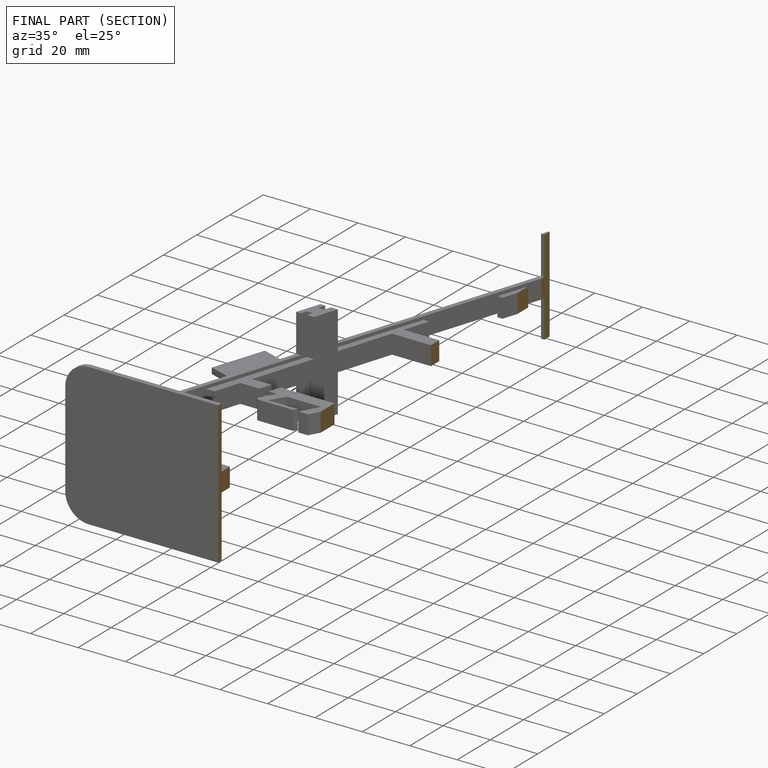
[diagram: finished part — half-section view (interior)]
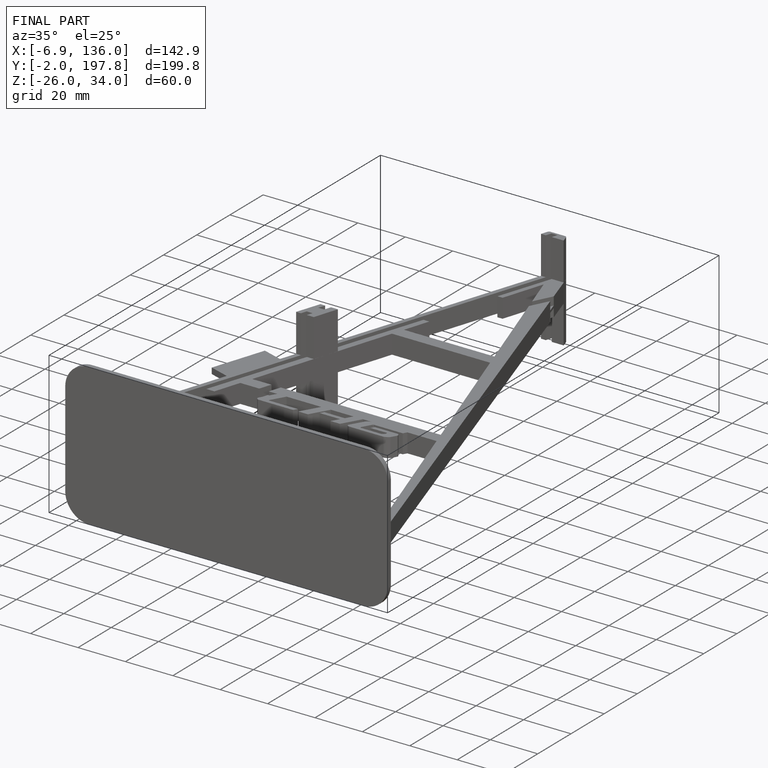
[diagram: finished part — iso view with bounding-box wireframe]
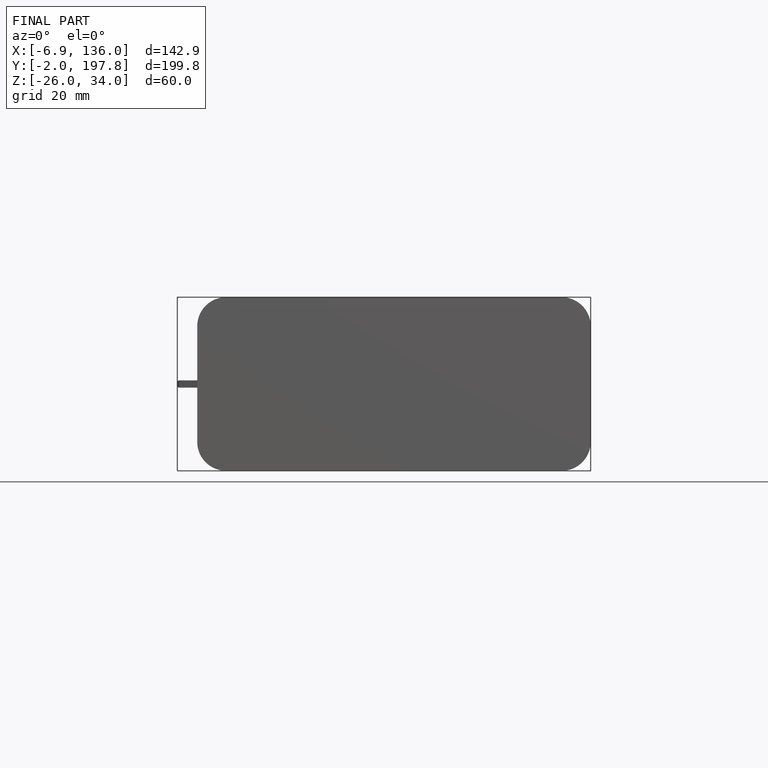
[diagram: finished part — front view with bounding-box wireframe]
